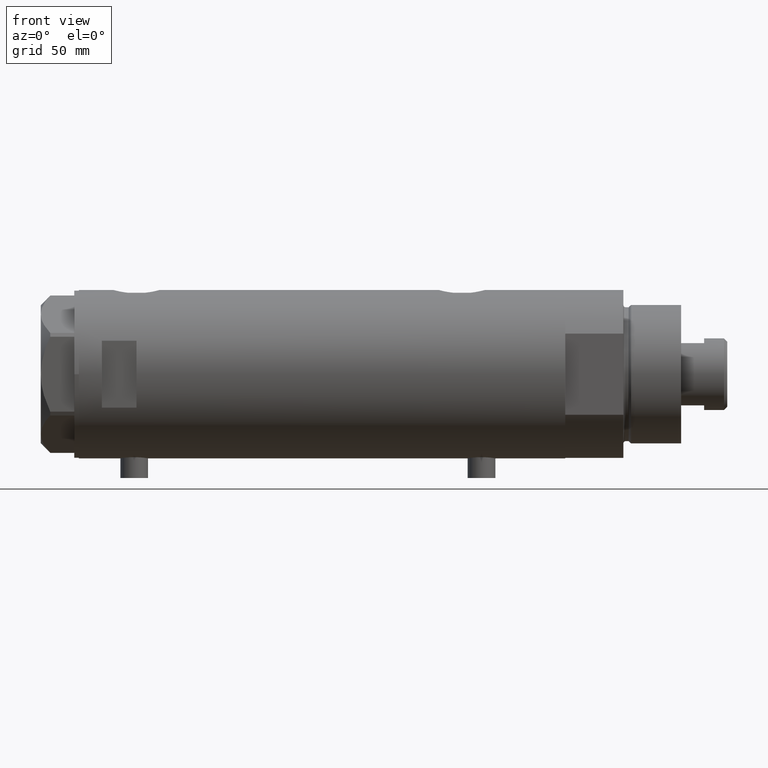
[diagram: clean part render]
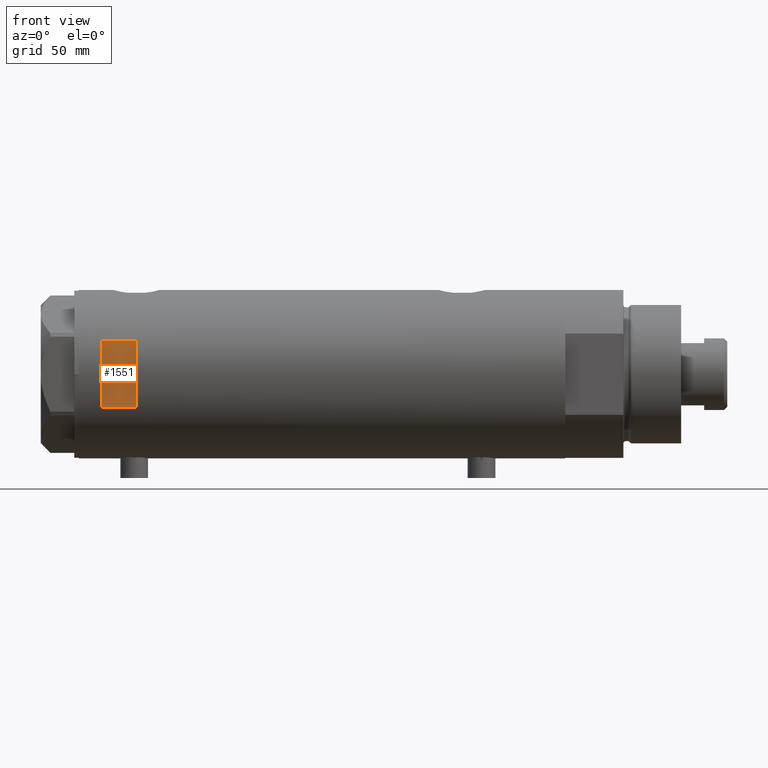
[diagram: same view with one face highlighted and labeled with its STEP entity id]
A machine part, front view. The second image highlights one B-rep face of the part: STEP entity #1551.
In plain terms, the highlighted planar face has unit normal (-0, 1, 0).
Its self-contained STEP definition (entity closure, byte-faithful):
#60 = DIRECTION ( 'NONE',  ( 0.000000000000000000, -0.000000000000000000, 1.000000000000000000 ) ) ;
#238 = LINE ( 'NONE', #959, #3728 ) ;
#377 = VERTEX_POINT ( 'NONE', #3734 ) ;
#434 = EDGE_CURVE ( 'NONE', #377, #3615, #1532, .T. ) ;
#941 = EDGE_LOOP ( 'NONE', ( #2693, #2962, #1346, #3458 ) ) ;
#959 = CARTESIAN_POINT ( 'NONE',  ( 14.49137674618942562, -33.50000000000000000, -105.4000000000000057 ) ) ;
#987 = CARTESIAN_POINT ( 'NONE',  ( 14.49137674618942739, -33.50000000000000000, 95.40000000000001990 ) ) ;
#1155 = CARTESIAN_POINT ( 'NONE',  ( -14.49137674618942562, -33.50000000000000000, -105.4000000000000057 ) ) ;
#1192 = EDGE_CURVE ( 'NONE', #377, #3720, #1447, .T. ) ;
#1218 = VECTOR ( 'NONE', #2850, 1000.000000000000000 ) ;
#1346 = ORIENTED_EDGE ( 'NONE', *, *, #4033, .T. ) ;
#1402 = PLANE ( 'NONE',  #3039 ) ;
#1447 = LINE ( 'NONE', #1155, #2358 ) ;
#1525 = EDGE_CURVE ( 'NONE', #3720, #4461, #4464, .T. ) ;
#1532 = LINE ( 'NONE', #2572, #1218 ) ;
#1551 = ADVANCED_FACE ( 'NONE', ( #1736 ), #1402, .F. ) ;
#1736 = FACE_OUTER_BOUND ( 'NONE', #941, .T. ) ;
#1970 = DIRECTION ( 'NONE',  ( 0.000000000000000000, 0.000000000000000000, 1.000000000000000000 ) ) ;
#2358 = VECTOR ( 'NONE', #2493, 1000.000000000000000 ) ;
#2406 = CARTESIAN_POINT ( 'NONE',  ( -36.50000000000000000, -33.50000000000000000, 80.40000000000003411 ) ) ;
#2412 = CARTESIAN_POINT ( 'NONE',  ( -14.49137674618942739, -33.50000000000000000, 80.40000000000003411 ) ) ;
#2493 = DIRECTION ( 'NONE',  ( -0.000000000000000000, -0.000000000000000000, -1.000000000000000000 ) ) ;
#2572 = CARTESIAN_POINT ( 'NONE',  ( -36.50000000000000000, -33.50000000000000000, 95.40000000000001990 ) ) ;
#2693 = ORIENTED_EDGE ( 'NONE', *, *, #1192, .T. ) ;
#2850 = DIRECTION ( 'NONE',  ( 1.000000000000000000, -0.000000000000000000, -0.000000000000000000 ) ) ;
#2962 = ORIENTED_EDGE ( 'NONE', *, *, #1525, .T. ) ;
#3039 = AXIS2_PLACEMENT_3D ( 'NONE', #3161, #3870, #60 ) ;
#3161 = CARTESIAN_POINT ( 'NONE',  ( -36.50000000000000000, -33.50000000000000000, 95.40000000000001990 ) ) ;
#3336 = DIRECTION ( 'NONE',  ( 1.000000000000000000, -0.000000000000000000, -0.000000000000000000 ) ) ;
#3458 = ORIENTED_EDGE ( 'NONE', *, *, #434, .F. ) ;
#3615 = VERTEX_POINT ( 'NONE', #987 ) ;
#3720 = VERTEX_POINT ( 'NONE', #2412 ) ;
#3728 = VECTOR ( 'NONE', #1970, 1000.000000000000000 ) ;
#3734 = CARTESIAN_POINT ( 'NONE',  ( -14.49137674618942739, -33.50000000000000000, 95.40000000000001990 ) ) ;
#3870 = DIRECTION ( 'NONE',  ( 0.000000000000000000, 1.000000000000000000, 0.000000000000000000 ) ) ;
#3983 = VECTOR ( 'NONE', #3336, 1000.000000000000000 ) ;
#4033 = EDGE_CURVE ( 'NONE', #4461, #3615, #238, .T. ) ;
#4205 = CARTESIAN_POINT ( 'NONE',  ( 14.49137674618942739, -33.50000000000000000, 80.40000000000003411 ) ) ;
#4461 = VERTEX_POINT ( 'NONE', #4205 ) ;
#4464 = LINE ( 'NONE', #2406, #3983 ) ;